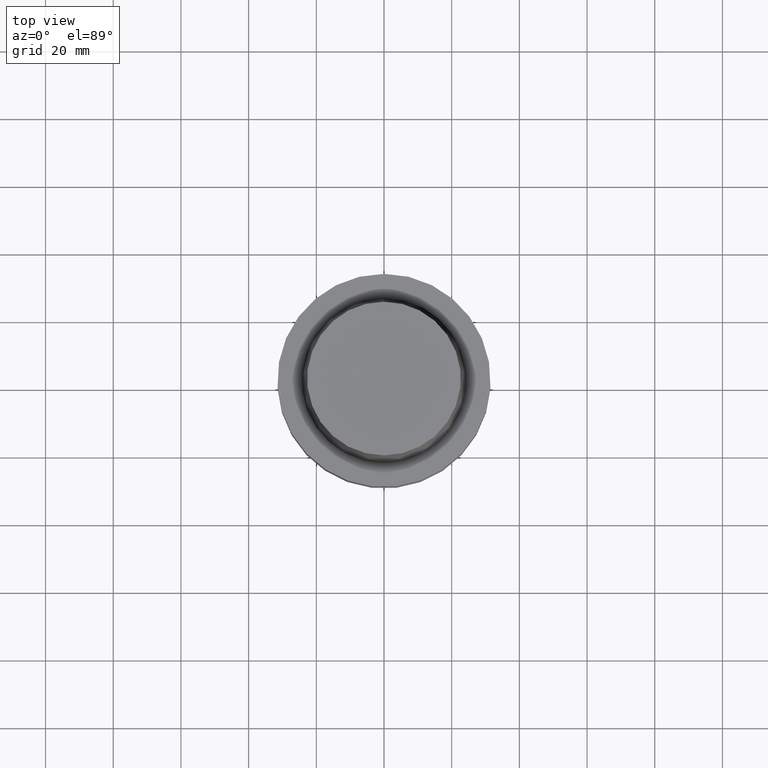
[diagram: clean part render]
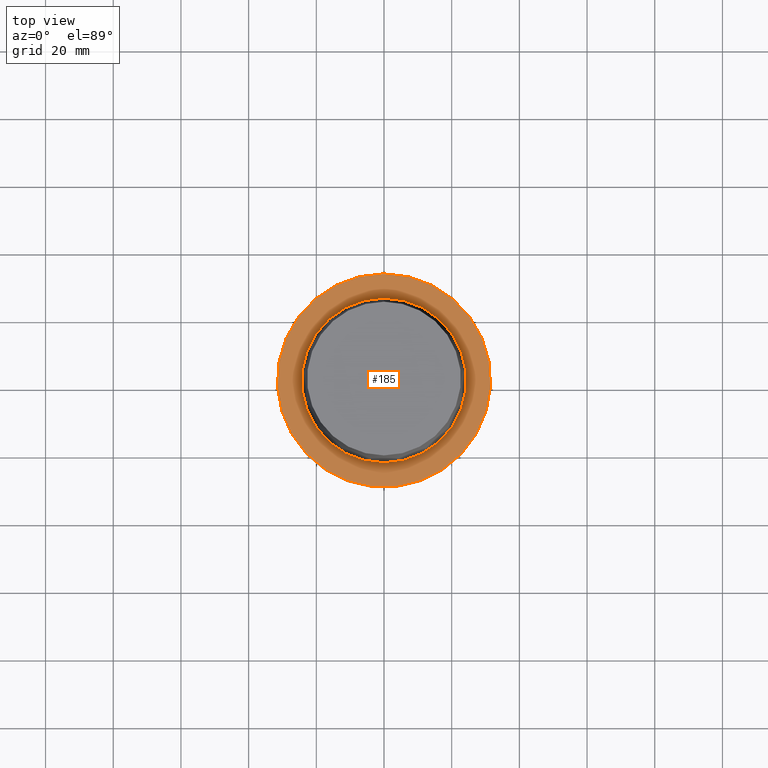
[diagram: same view with one face highlighted and labeled with its STEP entity id]
A machine part, top view. The second image highlights one B-rep face of the part: STEP entity #185.
In plain terms, the highlighted planar face has unit normal (-0, -0, 1).
Its self-contained STEP definition (entity closure, byte-faithful):
#113=EDGE_CURVE('Unnamed[1]',#268,#268,#269,.T.);
#185=ADVANCED_FACE('Unnamed[1]',(#377,#378),#379,.T.);
#187=EDGE_CURVE('Unnamed[1]',#381,#381,#382,.T.);
#268=VERTEX_POINT('',#473);
#269=CIRCLE('',#474,24.315);
#377=FACE_BOUND('',#608,.T.);
#378=FACE_OUTER_BOUND('',#609,.T.);
#379=PLANE('',#610);
#381=VERTEX_POINT('',#613);
#382=CIRCLE('',#614,31.5000000000001);
#473=CARTESIAN_POINT('',(-2.99705514225764E-031,24.315,2.97772869212679E-015));
#474=AXIS2_PLACEMENT_3D('',#691,#692,#693);
#608=EDGE_LOOP('',(#809));
#609=EDGE_LOOP('',(#810));
#610=AXIS2_PLACEMENT_3D('',#811,#812,#813);
#613=CARTESIAN_POINT('',(-3.88267476788467E-031,31.5000000000001,3.85763741731417E-015));
#614=AXIS2_PLACEMENT_3D('',#814,#815,#816);
#691=CARTESIAN_POINT('',(0.0,0.0,0.0));
#692=DIRECTION('',(-6.12323399573677E-017,-1.22464679914735E-016,1.0));
#693=DIRECTION('',(-1.23259516440783E-032,1.0,1.22464679914735E-016));
#809=ORIENTED_EDGE('',*,*,#113,.F.);
#810=ORIENTED_EDGE('',*,*,#187,.T.);
#811=CARTESIAN_POINT('',(-3.43986495507116E-031,27.9075,3.41768305472048E-015));
#812=DIRECTION('',(-6.12323399573677E-017,-1.22464679914735E-016,1.0));
#813=DIRECTION('',(-1.23259516440783E-032,1.0,1.22464679914735E-016));
#814=CARTESIAN_POINT('',(0.0,0.0,0.0));
#815=DIRECTION('',(-6.12323399573677E-017,-1.22464679914735E-016,1.0));
#816=DIRECTION('',(-1.23259516440783E-032,1.0,1.22464679914735E-016));